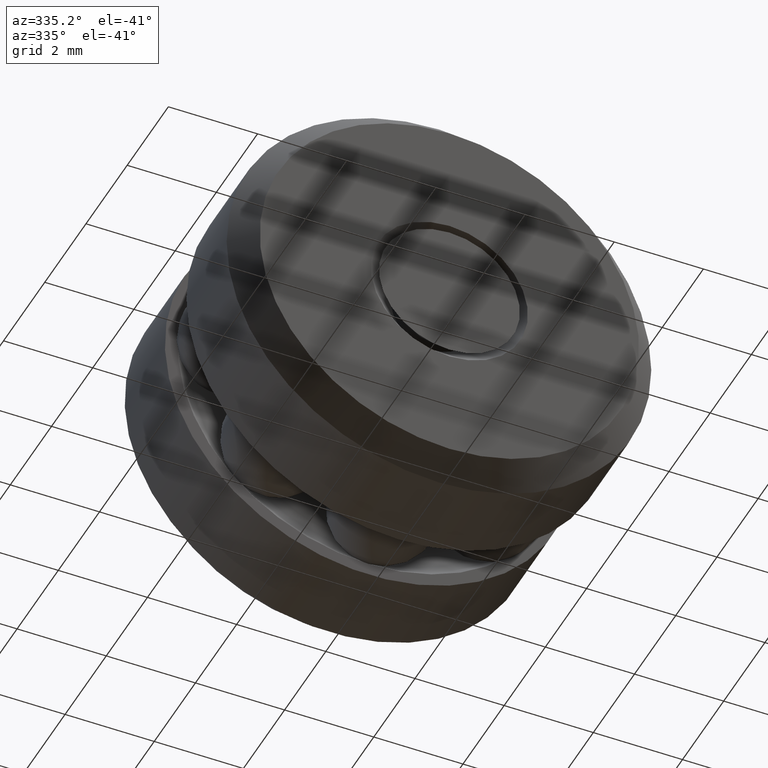
[diagram: clean part render]
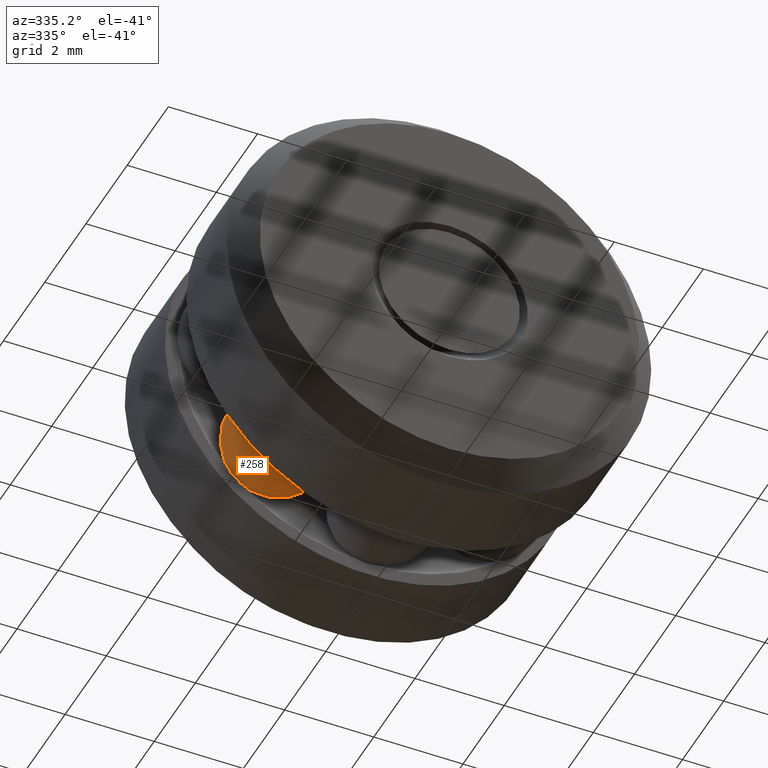
[diagram: same view with one face highlighted and labeled with its STEP entity id]
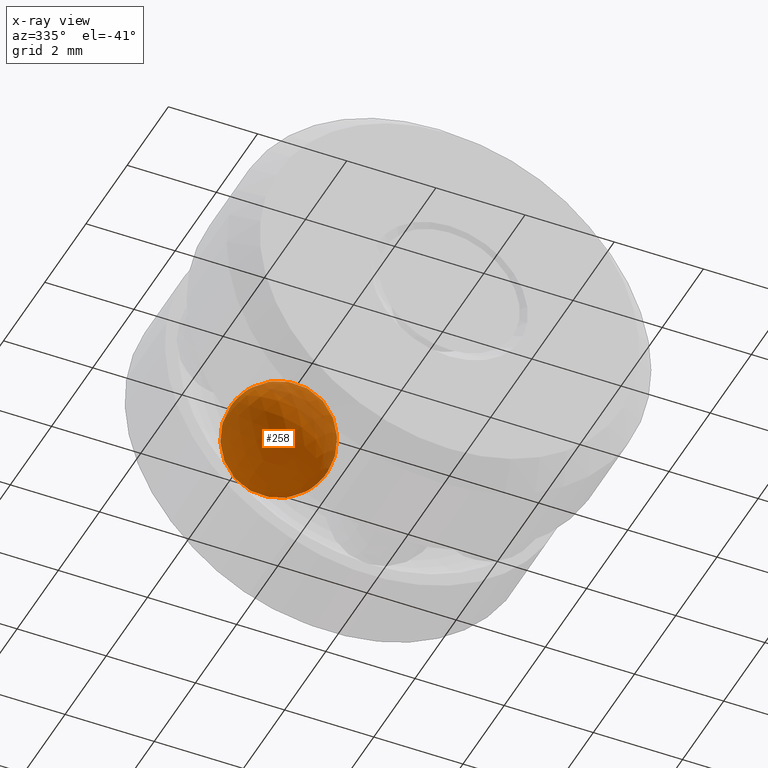
[diagram: x-ray of the same camera — body ghosted, the highlighted face saturated]
A machine part, auxiliary view. The second image highlights one B-rep face of the part: STEP entity #258.
The next image is the same camera in x-ray: the body ghosted, the highlighted face saturated — about 21% of this face is hidden behind the body in this view.
In plain terms, the highlighted spherical surface has radius 1.1938 mm.
Its self-contained STEP definition (entity closure, byte-faithful):
#87 = SPHERICAL_SURFACE ( 'NONE', #417, 0.04699999999999998600 ) ;
#258 = ADVANCED_FACE ( 'NONE', ( ), #87, .T. ) ;
#389 = DIRECTION ( 'NONE',  ( 0.7071067811865389100, 0.0000000000000000000, -0.7071067811865561200 ) ) ;
#390 = CARTESIAN_POINT ( 'NONE',  ( -0.09298454172603212700, 0.1249999999999999900, -0.09298454172602985100 ) ) ;
#417 = AXIS2_PLACEMENT_3D ( 'NONE', #390, #389, #514 ) ;
#514 = DIRECTION ( 'NONE',  ( 0.7071067811865561200, 0.0000000000000000000, 0.7071067811865389100 ) ) ;